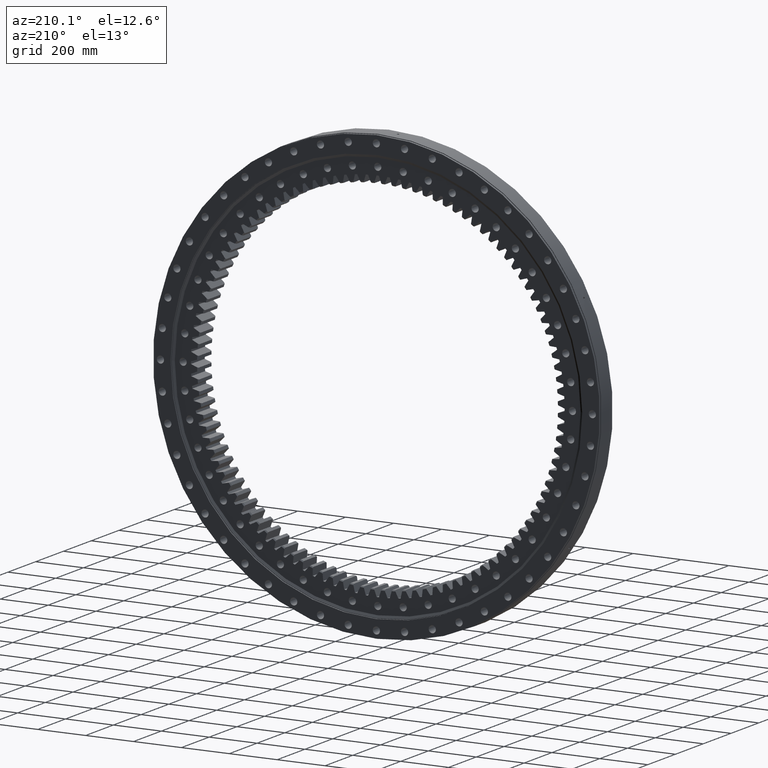
[diagram: clean part render]
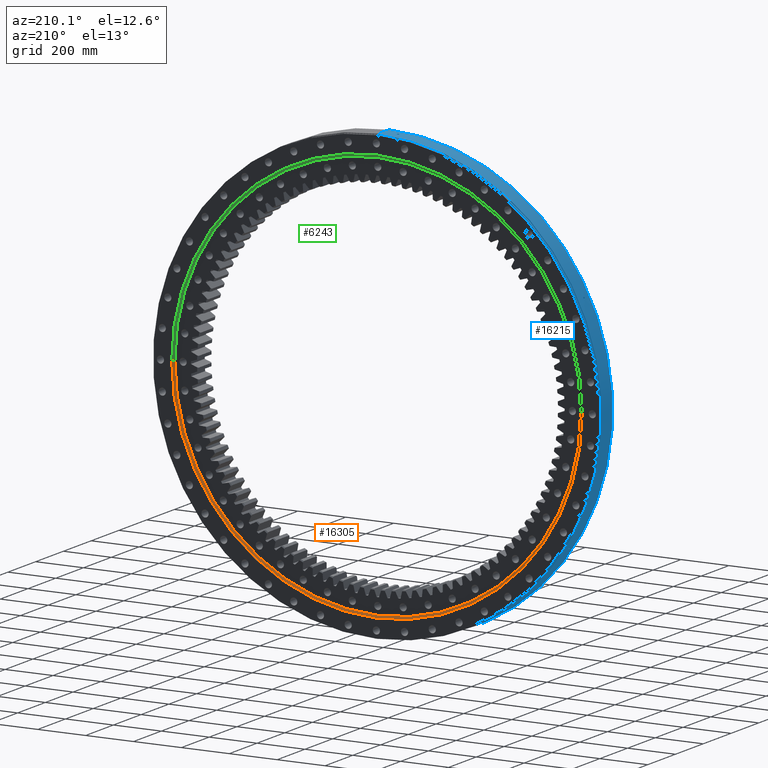
[diagram: same view with three faces highlighted in distinct colors, each labeled with its STEP entity id]
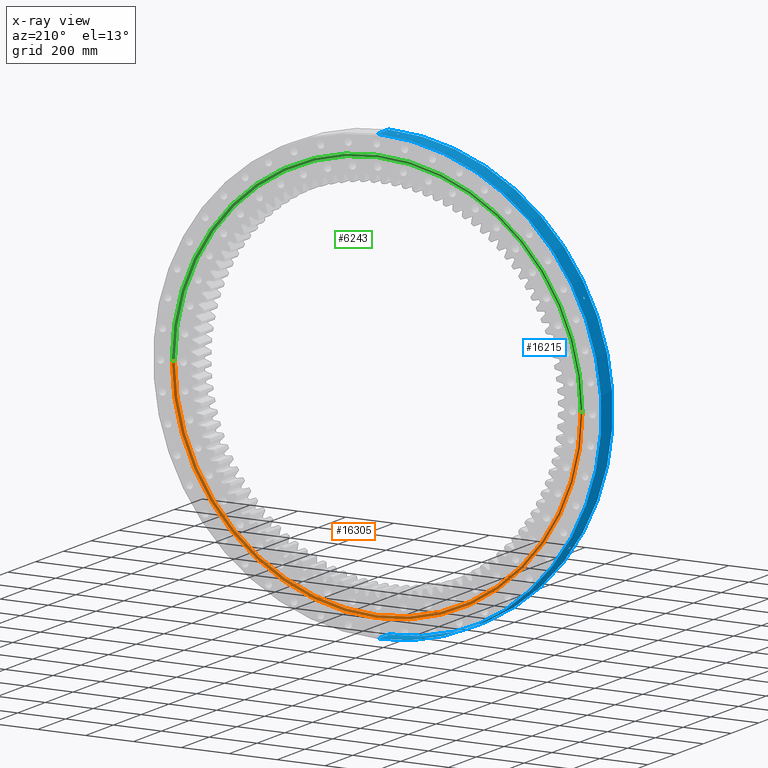
[diagram: x-ray of the same camera — body ghosted, the three highlighted faces saturated]
A machine part, auxiliary view with three faces highlighted in distinct colors.
The next image is the same camera in x-ray (body ghosted, the three faces saturated) — at least one of them is partly hidden behind the body in this view.
Their STEP definitions:

[orange] entity #16305 — the highlighted conical surface has half-angle 63.206 deg.
#672 = EDGE_LOOP ( 'NONE', ( #12882, #1497, #17077, #18035 ) ) ;
#1497 = ORIENTED_EDGE ( 'NONE', *, *, #20032, .T. ) ;
#1520 = AXIS2_PLACEMENT_3D ( 'NONE', #11622, #31775, #9370 ) ;
#2172 = DIRECTION ( 'NONE',  ( 1.836909530733565900E-016, 1.000000000000000000, -0.0000000000000000000 ) ) ;
#2451 = DIRECTION ( 'NONE',  ( -1.000000000000000000, 1.800774025532636500E-016, 0.0000000000000000000 ) ) ;
#2621 = CARTESIAN_POINT ( 'NONE',  ( -847.7224999999998500, 39.99999999999997900, 0.0000000000000000000 ) ) ;
#4622 = LINE ( 'NONE', #27598, #29627 ) ;
#5287 = CARTESIAN_POINT ( 'NONE',  ( 847.7224999999998500, 39.99999999999967300, 1.044283880185928600E-013 ) ) ;
#6338 = CONICAL_SURFACE ( 'NONE', #1520, 857.7224999999999700, 1.103156723031658600 ) ;
#7347 = VERTEX_POINT ( 'NONE', #18870 ) ;
#7887 = EDGE_CURVE ( 'NONE', #7933, #13653, #21418, .T. ) ;
#7933 = VERTEX_POINT ( 'NONE', #5287 ) ;
#8006 = DIRECTION ( 'NONE',  ( 1.836909530733565900E-016, 1.000000000000000000, -0.0000000000000000000 ) ) ;
#8359 = VECTOR ( 'NONE', #16414, 999.9999999999998900 ) ;
#9370 = DIRECTION ( 'NONE',  ( -1.000000000000000000, 1.860678247217092600E-016, 0.0000000000000000000 ) ) ;
#9931 = DIRECTION ( 'NONE',  ( 0.8926347946143691200, 0.4507805712802661600, 1.093162344032042000E-016 ) ) ;
#10504 = CARTESIAN_POINT ( 'NONE',  ( -8.773100306903011100E-017, 45.04999999999999700, 0.0000000000000000000 ) ) ;
#11622 = CARTESIAN_POINT ( 'NONE',  ( -8.773100306903011100E-017, 45.04999999999999700, 0.0000000000000000000 ) ) ;
#12882 = ORIENTED_EDGE ( 'NONE', *, *, #7887, .F. ) ;
#13653 = VERTEX_POINT ( 'NONE', #2621 ) ;
#13954 = AXIS2_PLACEMENT_3D ( 'NONE', #10504, #8006, #25461 ) ;
#14982 = LINE ( 'NONE', #18805, #8359 ) ;
#16305 = ADVANCED_FACE ( 'NONE', ( #20384 ), #6338, .F. ) ;
#16414 = DIRECTION ( 'NONE',  ( -0.8926347946143689000, 0.4507805712802665500, 0.0000000000000000000 ) ) ;
#17077 = ORIENTED_EDGE ( 'NONE', *, *, #22381, .T. ) ;
#18035 = ORIENTED_EDGE ( 'NONE', *, *, #29755, .F. ) ;
#18805 = CARTESIAN_POINT ( 'NONE',  ( -857.7224999999999700, 45.05000000000016100, 0.0000000000000000000 ) ) ;
#18870 = CARTESIAN_POINT ( 'NONE',  ( 857.7224999999999700, 45.04999999999984100, 1.050407114181665500E-013 ) ) ;
#19814 = CARTESIAN_POINT ( 'NONE',  ( -1.015370316089513500E-015, 39.99999999999982900, 0.0000000000000000000 ) ) ;
#20032 = EDGE_CURVE ( 'NONE', #7933, #7347, #4622, .T. ) ;
#20384 = FACE_OUTER_BOUND ( 'NONE', #672, .T. ) ;
#21418 = CIRCLE ( 'NONE', #29841, 847.7224999999998500 ) ;
#22381 = EDGE_CURVE ( 'NONE', #7347, #31724, #25193, .T. ) ;
#22988 = CARTESIAN_POINT ( 'NONE',  ( -857.7224999999999700, 45.05000000000016100, 0.0000000000000000000 ) ) ;
#25193 = CIRCLE ( 'NONE', #13954, 857.7224999999999700 ) ;
#25461 = DIRECTION ( 'NONE',  ( -1.000000000000000000, 1.860678247217092600E-016, 0.0000000000000000000 ) ) ;
#27598 = CARTESIAN_POINT ( 'NONE',  ( 857.7224999999999700, 45.04999999999984100, 1.050407114181665500E-013 ) ) ;
#29627 = VECTOR ( 'NONE', #9931, 1000.000000000000000 ) ;
#29755 = EDGE_CURVE ( 'NONE', #13653, #31724, #14982, .T. ) ;
#29841 = AXIS2_PLACEMENT_3D ( 'NONE', #19814, #2172, #2451 ) ;
#31724 = VERTEX_POINT ( 'NONE', #22988 ) ;
#31775 = DIRECTION ( 'NONE',  ( 1.836909530733565900E-016, 1.000000000000000000, -0.0000000000000000000 ) ) ;

[blue] entity #16215 — the highlighted cylindrical surface (partial cylindrical patch) has radius 935 mm, axis along (0, -1, -0).
#53 = EDGE_CURVE ( 'NONE', #22569, #27398, #15086, .T. ) ;
#161 = CARTESIAN_POINT ( 'NONE',  ( 5.190292640122606200E-014, 40.00000000000007800, 935.0000000000000000 ) ) ;
#709 = VECTOR ( 'NONE', #22413, 1000.000000000000000 ) ;
#881 = CARTESIAN_POINT ( 'NONE',  ( -839.8870588332384800, 3.390113906908525500, 410.8707479483011300 ) ) ;
#884 = CARTESIAN_POINT ( 'NONE',  ( -836.6786590791380100, -1.449882367915966000, 417.3653483432936500 ) ) ;
#893 = VERTEX_POINT ( 'NONE', #1319 ) ;
#988 = CARTESIAN_POINT ( 'NONE',  ( -58.90045909535886900, 3.904602557603769100, 933.1429662058669700 ) ) ;
#1058 = CARTESIAN_POINT ( 'NONE',  ( -839.0891346071400700, -4.357379671200597200, 412.4978870712253100 ) ) ;
#1097 = CARTESIAN_POINT ( 'NONE',  ( -840.5438266153053100, -0.5914352571034029400, 409.5254313578515700 ) ) ;
#1197 = B_SPLINE_CURVE_WITH_KNOTS ( 'NONE', 3,
 ( #15827, #8311, #17112, #20834, #20725, #3259, #25763, #28249, #10808, #881, #17600, #16554, #18218, #14692, #20572, #29768, #18647, #3682, #31654, #13615, #31101, #1212, #21043, #6097, #28578, #5882, #23348, #8414, #20934, #3473, #20831, #25866, #25965, #5989 ),
 .UNSPECIFIED., .F., .F.,
 ( 4, 2, 2, 2, 2, 2, 2, 2, 2, 2, 2, 2, 2, 2, 2, 2, 4 ),
 ( 9.606098294441391000E-019, 0.0008793173817945185400, 0.001758634763589036400, 0.002637952145383554400, 0.003517269527178072800, 0.004396586908972590000, 0.005275904290767108000, 0.006155221672561625100, 0.007034539054356143100, 0.007913856436150661100, 0.008793173817945178200, 0.009672491199739697100, 0.01055180858153421400, 0.01143112596332873100, 0.01231044334512324800, 0.01318976072691776700, 0.01406907810871228300 ),
 .UNSPECIFIED. ) ;
#1212 = CARTESIAN_POINT ( 'NONE',  ( -837.6928576337551200, 4.045567073167651600, 415.3260772956440400 ) ) ;
#1319 = CARTESIAN_POINT ( 'NONE',  ( -836.5760020462295200, -1.428483482257324800E-008, 417.5710631740984700 ) ) ;
#1675 = CIRCLE ( 'NONE', #27804, 935.0000000000000000 ) ;
#1791 = CARTESIAN_POINT ( 'NONE',  ( -836.6400752062489800, -1.165408872379744700, 417.4426761442746900 ) ) ;
#2263 = ORIENTED_EDGE ( 'NONE', *, *, #13979, .T. ) ;
#2414 = CARTESIAN_POINT ( 'NONE',  ( -60.56315685656362300, 4.470845085126462900, 933.0365412533557200 ) ) ;
#2833 = EDGE_CURVE ( 'NONE', #22285, #24468, #22994, .T. ) ;
#3025 = VECTOR ( 'NONE', #21871, 1000.000000000000000 ) ;
#3259 = CARTESIAN_POINT ( 'NONE',  ( -840.3568103844704600, 1.995678256666558100, 409.9090679657718400 ) ) ;
#3330 = CARTESIAN_POINT ( 'NONE',  ( -836.9874824536401500, -2.745436245652618900, 416.7457033952582600 ) ) ;
#3473 = CARTESIAN_POINT ( 'NONE',  ( -836.6784774304472900, 1.449115420867275000, 417.3657127287106600 ) ) ;
#3586 = CARTESIAN_POINT ( 'NONE',  ( -840.4550158119800500, -1.455744642426040300, 409.7076751027817100 ) ) ;
#3597 = FACE_BOUND ( 'NONE', #3846, .T. ) ;
#3682 = CARTESIAN_POINT ( 'NONE',  ( -838.4469043340341200, 4.500103715215613100, 413.8017336345386100 ) ) ;
#3846 = EDGE_LOOP ( 'NONE', ( #20776, #21255 ) ) ;
#4116 = B_SPLINE_CURVE_WITH_KNOTS ( 'NONE', 3,
 ( #23637, #26261, #4163, #1791, #884, #28215, #15828, #3330, #15785, #13161, #20690, #21749, #6289, #18731, #23316, #8279, #10881, #5959, #25931, #1058, #13480, #28475, #11022, #25972, #8529, #23467, #5994, #16051, #30998, #3586, #13516, #1097, #18548, #31700 ),
 .UNSPECIFIED., .F., .F.,
 ( 4, 2, 2, 2, 2, 2, 2, 2, 2, 2, 2, 2, 2, 2, 2, 2, 4 ),
 ( 0.01406907810871228300, 0.01494819704045171500, 0.01582731597219114500, 0.01670643490393057900, 0.01758555383567000900, 0.01846467276740944300, 0.01934379169914887300, 0.02022291063088830700, 0.02110202956262773700, 0.02198114849436717100, 0.02286026742610660100, 0.02373938635784603200, 0.02461850528958546600, 0.02549762422132489900, 0.02637674315306433000, 0.02725586208480376000, 0.02813498101654319400 ),
 .UNSPECIFIED. ) ;
#4131 = VERTEX_POINT ( 'NONE', #161 ) ;
#4163 = CARTESIAN_POINT ( 'NONE',  ( -836.5887150865633000, -0.5854521477973440000, 417.5455964292104300 ) ) ;
#4324 = CARTESIAN_POINT ( 'NONE',  ( 2.601341135008604100E-015, -22.16364734299516900, -7.744460120454373600E-016 ) ) ;
#4423 = CARTESIAN_POINT ( 'NONE',  ( -774.9150175199831700, -1.428477248101357300E-008, -523.1937648921327800 ) ) ;
#4435 = CARTESIAN_POINT ( 'NONE',  ( -774.9150175199831700, 0.2973259170856331100, -523.1937648921330000 ) ) ;
#4476 = EDGE_LOOP ( 'NONE', ( #12852, #20571, #6640, #20876 ) ) ;
#4577 = CARTESIAN_POINT ( 'NONE',  ( -774.9313457239331900, 0.5896826915132857800, -523.1695831010428000 ) ) ;
#4619 = CARTESIAN_POINT ( 'NONE',  ( -774.9953100212703700, 1.164864380539166700, -523.0748251566503800 ) ) ;
#4645 = CARTESIAN_POINT ( 'NONE',  ( -775.0437221192661400, 1.450668035379774100, -523.0030990000372000 ) ) ;
#4688 = CARTESIAN_POINT ( 'NONE',  ( -775.1700712921946200, 1.995678256666611800, -522.8158120533299800 ) ) ;
#4725 = CARTESIAN_POINT ( 'NONE',  ( -775.4299246063383200, 2.743366967131641000, -522.4303386066952700 ) ) ;
#4752 = CARTESIAN_POINT ( 'NONE',  ( -775.2473734148784400, 2.254167965635247600, -522.7011925421918500 ) ) ;
#4788 = CARTESIAN_POINT ( 'NONE',  ( -775.5361419730034000, 2.974980489996665900, -522.2726640451068100 ) ) ;
#4820 = CARTESIAN_POINT ( 'NONE',  ( -775.7680348117597800, 3.390113906908633500, -521.9281552852307900 ) ) ;
#4827 = CARTESIAN_POINT ( 'NONE',  ( -775.8945073355633900, 3.576390742001641000, -521.7401403022057600 ) ) ;
#4850 = CARTESIAN_POINT ( 'NONE',  ( -776.1689413729743600, 3.905345692483482600, -521.3317897117129900 ) ) ;
#4851 = AXIS2_PLACEMENT_3D ( 'NONE', #4324, #14035, #10018 ) ;
#4892 = CARTESIAN_POINT ( 'NONE',  ( -776.3149847092790900, 4.045122954196368200, -521.1143040072039400 ) ) ;
#4919 = CARTESIAN_POINT ( 'NONE',  ( -62.60038682104426800, 4.269502545717660500, 932.9020660792519900 ) ) ;
#4928 = CARTESIAN_POINT ( 'NONE',  ( -776.6166950570966500, 4.269502545717617900, -520.6645583133865800 ) ) ;
#4999 = CARTESIAN_POINT ( 'NONE',  ( -776.7745854934034900, 4.355843313726299300, -520.4289843042551000 ) ) ;
#5042 = CARTESIAN_POINT ( 'NONE',  ( -777.0977908991950500, 4.471354350002257200, -519.9462546763826400 ) ) ;
#5123 = CARTESIAN_POINT ( 'NONE',  ( -777.5862656245680000, 4.500103715215642500, -519.2154520604268600 ) ) ;
#5158 = CARTESIAN_POINT ( 'NONE',  ( -777.2601374475087800, 4.499895691090911100, -519.7035355674946700 ) ) ;
#5196 = CARTESIAN_POINT ( 'NONE',  ( -777.7517689562894200, 4.470845085126433600, -518.9675029978473000 ) ) ;
#5225 = CARTESIAN_POINT ( 'NONE',  ( -778.0719785511164400, 4.355942455188898800, -518.4872992427187900 ) ) ;
#5328 = CARTESIAN_POINT ( 'NONE',  ( -778.2275001971288500, 4.270949597818860100, -518.2538298453007400 ) ) ;
#5360 = CARTESIAN_POINT ( 'NONE',  ( -778.5293626090435700, 4.045567073167708500, -517.8002566317931000 ) ) ;
#5405 = CARTESIAN_POINT ( 'NONE',  ( -778.6752845493630300, 3.904602557603730400, -517.5807769740843000 ) ) ;
#5433 = CARTESIAN_POINT ( 'NONE',  ( -778.9451471073288100, 3.578756322932919300, -517.1745520219165000 ) ) ;
#5508 = CARTESIAN_POINT ( 'NONE',  ( -779.0708405521487500, 3.392751208765664800, -516.9851734251839200 ) ) ;
#5531 = CARTESIAN_POINT ( 'NONE',  ( -779.3030960576820700, 2.972768551380315500, -516.6350052164580100 ) ) ;
#5612 = CARTESIAN_POINT ( 'NONE',  ( -779.4061673380904300, 2.744954370038871900, -516.4794796218783400 ) ) ;
#5634 = CARTESIAN_POINT ( 'NONE',  ( -779.5861503363922800, 2.257522880529886600, -516.2077689834025000 ) ) ;
#5675 = CARTESIAN_POINT ( 'NONE',  ( -779.6638857672577400, 1.994552762401068200, -516.0903389787263200 ) ) ;
#5714 = CARTESIAN_POINT ( 'NONE',  ( -779.8354726871381200, 1.168558750569269600, -515.8310177236860500 ) ) ;
#5740 = CARTESIAN_POINT ( 'NONE',  ( -779.7885486068843200, 1.449115420867305600, -515.9019598900991900 ) ) ;
#5782 = CARTESIAN_POINT ( 'NONE',  ( -779.8989186827600400, 0.5919602189344246300, -515.7350869821510700 ) ) ;
#5831 = CARTESIAN_POINT ( 'NONE',  ( -779.9151496171596100, 0.2936958648407266800, -515.7105383814097200 ) ) ;
#5856 = CARTESIAN_POINT ( 'NONE',  ( -779.9151496171596100, -1.428479556141703000E-008, -515.7105383814099500 ) ) ;
#5882 = CARTESIAN_POINT ( 'NONE',  ( -837.0705870305988600, 2.972768551380241300, 416.5787758255901800 ) ) ;
#5959 = CARTESIAN_POINT ( 'NONE',  ( -838.7055620320421700, -4.500248275093519500, 413.2772292819373100 ) ) ;
#5989 = CARTESIAN_POINT ( 'NONE',  ( -836.5760020462295200, -1.428483482257324800E-008, 417.5710631740984700 ) ) ;
#5994 = CARTESIAN_POINT ( 'NONE',  ( -840.1505977614276600, -2.750356992142264800, 410.3315733882947700 ) ) ;
#6097 = CARTESIAN_POINT ( 'NONE',  ( -837.3588737954796700, 3.578756322932875800, 415.9990095385972500 ) ) ;
#6213 = CARTESIAN_POINT ( 'NONE',  ( -57.76749097291330800, 2.972768551380359000, 933.2137810420466600 ) ) ;
#6289 = CARTESIAN_POINT ( 'NONE',  ( -837.6904525244199200, -4.042877907133463300, 415.3309279980291000 ) ) ;
#6640 = ORIENTED_EDGE ( 'NONE', *, *, #53, .F. ) ;
#6655 = B_SPLINE_CURVE_WITH_KNOTS ( 'NONE', 3,
 ( #11935, #11755, #11897, #11857, #12076, #12024, #11970, #11960, #12220, #12190, #12115, #12084, #12332, #12300, #12292, #12260, #12487, #12443, #12414, #12404, #12623, #12587, #12551, #12524, #12800, #12762, #12718, #12650, #12939, #12873, #12843, #12832, #12946, #13070 ),
 .UNSPECIFIED., .F., .F.,
 ( 4, 2, 2, 2, 2, 2, 2, 2, 2, 2, 2, 2, 2, 2, 2, 2, 4 ),
 ( 0.01406907810871240600, 0.01494819704045185000, 0.01582731597219129400, 0.01670643490393073500, 0.01758555383567017900, 0.01846467276740962300, 0.01934379169914906800, 0.02022291063088851200, 0.02110202956262795200, 0.02198114849436739700, 0.02286026742610684100, 0.02373938635784628500, 0.02461850528958572900, 0.02549762422132517000, 0.02637674315306461800, 0.02725586208480405800, 0.02813498101654349900 ),
 .UNSPECIFIED. ) ;
#7009 = EDGE_LOOP ( 'NONE', ( #10035, #2263 ) ) ;
#7247 = CARTESIAN_POINT ( 'NONE',  ( -57.11540131966614800, 1.994552762401127200, 933.2539009770971500 ) ) ;
#7432 = EDGE_CURVE ( 'NONE', #4131, #22569, #9703, .T. ) ;
#7901 = CARTESIAN_POINT ( 'NONE',  ( -56.66085242906655100, 0.2936958648407602700, 933.2816015555065400 ) ) ;
#8279 = CARTESIAN_POINT ( 'NONE',  ( -838.3138073838457600, -4.470446237297413600, 414.0713019059583600 ) ) ;
#8311 = CARTESIAN_POINT ( 'NONE',  ( -840.5566002582005500, 0.2973259170855894200, 409.4992085003044600 ) ) ;
#8414 = CARTESIAN_POINT ( 'NONE',  ( -836.8421167387107300, 2.257522880529850600, 417.0375261381306600 ) ) ;
#8529 = CARTESIAN_POINT ( 'NONE',  ( -839.8862184863895700, -3.391803679046448300, 410.8724658605009400 ) ) ;
#9619 = CARTESIAN_POINT ( 'NONE',  ( -65.64158273821399800, -1.428476236082082400E-008, 932.6929733924355300 ) ) ;
#9703 = LINE ( 'NONE', #21672, #3025 ) ;
#9766 = CARTESIAN_POINT ( 'NONE',  ( -63.40210300425901100, 3.905345692483500800, 932.8479157133271000 ) ) ;
#9819 = B_SPLINE_CURVE_WITH_KNOTS ( 'NONE', 3,
 ( #27745, #22501, #29928, #12454, #27417, #27312, #9869, #24809, #17285, #12227, #27208, #9766, #22396, #4919, #19890, #14868, #29830, #12342, #2414, #17384, #32340, #18441, #988, #15933, #23670, #6213, #21163, #24706, #7247, #22190, #10386, #25345, #7901, #25452 ),
 .UNSPECIFIED., .F., .F.,
 ( 4, 2, 2, 2, 2, 2, 2, 2, 2, 2, 2, 2, 2, 2, 2, 2, 4 ),
 ( 1.845531891285181700E-018, 0.0008793173817945372900, 0.001758634763589072400, 0.002637952145383607300, 0.003517269527178141800, 0.004396586908972676700, 0.005275904290767212900, 0.006155221672561709200, 0.007034539054356205500, 0.007913856436150702700, 0.008793173817945197300, 0.009672491199739693600, 0.01055180858153419200, 0.01143112596332868800, 0.01231044334512318300, 0.01318976072691768100, 0.01406907810871217500 ),
 .UNSPECIFIED. ) ;
#9869 = CARTESIAN_POINT ( 'NONE',  ( -65.04882462251549700, 2.254167965635245400, 932.7345158655421100 ) ) ;
#10018 = DIRECTION ( 'NONE',  ( 5.551115123125782700E-017, -3.339574606158558900E-017, 1.000000000000000000 ) ) ;
#10035 = ORIENTED_EDGE ( 'NONE', *, *, #24246, .T. ) ;
#10270 = FACE_BOUND ( 'NONE', #7009, .T. ) ;
#10386 = CARTESIAN_POINT ( 'NONE',  ( -56.80502906511953400, 1.168558750569284500, 933.2728389811505800 ) ) ;
#10501 = AXIS2_PLACEMENT_3D ( 'NONE', #31081, #30874, #30657 ) ;
#10733 = VERTEX_POINT ( 'NONE', #26467 ) ;
#10808 = CARTESIAN_POINT ( 'NONE',  ( -840.0694657517390200, 2.974980489996545100, 410.4976684790445300 ) ) ;
#10860 = CARTESIAN_POINT ( 'NONE',  ( 5.659771529540282600E-014, -39.99999999999985100, 935.0000000000000000 ) ) ;
#10881 = CARTESIAN_POINT ( 'NONE',  ( -838.4431124020626400, -4.499748562082101200, 413.8094190469579400 ) ) ;
#11022 = CARTESIAN_POINT ( 'NONE',  ( -839.5692481509585100, -3.907537655886201400, 411.5197897098918200 ) ) ;
#11394 = CARTESIAN_POINT ( 'NONE',  ( -65.04580552007109900, -2.259570904133299900, 932.7347266090409900 ) ) ;
#11415 = CARTESIAN_POINT ( 'NONE',  ( -64.71773235160958400, -2.750356992142195100, 932.7575473602255400 ) ) ;
#11418 = B_SPLINE_CURVE_WITH_KNOTS ( 'NONE', 3,
 ( #4423, #4435, #4577, #4619, #4645, #4688, #4752, #4725, #4788, #4820, #4827, #4850, #4892, #4928, #4999, #5042, #5158, #5123, #5196, #5225, #5328, #5360, #5405, #5433, #5508, #5531, #5612, #5634, #5675, #5740, #5714, #5782, #5831, #5856 ),
 .UNSPECIFIED., .F., .F.,
 ( 4, 2, 2, 2, 2, 2, 2, 2, 2, 2, 2, 2, 2, 2, 2, 2, 4 ),
 ( 3.134958246475574900E-017, 0.0008793173817945551800, 0.001758634763589079100, 0.002637952145383601700, 0.003517269527178124900, 0.004396586908972647200, 0.005275904290767171300, 0.006155221672561693600, 0.007034539054356216800, 0.007913856436150740900, 0.008793173817945263200, 0.009672491199739789000, 0.01055180858153431300, 0.01143112596332883500, 0.01231044334512335900, 0.01318976072691788400, 0.01406907810871240600 ),
 .UNSPECIFIED. ) ;
#11426 = CARTESIAN_POINT ( 'NONE',  ( -64.53185054537145500, -2.976676937804931400, 932.7704344965301300 ) ) ;
#11718 = CARTESIAN_POINT ( 'NONE',  ( -65.49632652839102300, -1.173647371215869000, 932.7031867648040600 ) ) ;
#11755 = CARTESIAN_POINT ( 'NONE',  ( -779.9151496171596100, -0.2936296102177011800, -515.7105383814098300 ) ) ;
#11816 = CARTESIAN_POINT ( 'NONE',  ( -65.41025314151767100, -1.455744642425954400, 932.7092319826175500 ) ) ;
#11825 = CARTESIAN_POINT ( 'NONE',  ( -65.18593207746843600, -1.997034113176124200, 932.7249363562835900 ) ) ;
#11850 = CARTESIAN_POINT ( 'NONE',  ( -64.11711609244432000, -3.391803679046361300, 932.7990344279114700 ) ) ;
#11857 = CARTESIAN_POINT ( 'NONE',  ( -779.8359997678259100, -1.165408872379706500, -515.8302208805994300 ) ) ;
#11858 = CARTESIAN_POINT ( 'NONE',  ( -63.88583015509618700, -3.581694362248828400, 932.8149122248383900 ) ) ;
#11892 = CARTESIAN_POINT ( 'NONE',  ( -63.39803202668078800, -3.907537655886125900, 932.8481919898775900 ) ) ;
#11897 = CARTESIAN_POINT ( 'NONE',  ( -779.8994512893016200, -0.5854521477973057000, -515.7342815697420500 ) ) ;
#11935 = CARTESIAN_POINT ( 'NONE',  ( -779.9151496171596100, -1.428479556141703000E-008, -515.7105383814099500 ) ) ;
#11960 = CARTESIAN_POINT ( 'NONE',  ( -779.4061072851270600, -2.745436245652562900, -516.4795707568072200 ) ) ;
#11970 = CARTESIAN_POINT ( 'NONE',  ( -779.5878681819764300, -2.252548490497078100, -516.2051751638803100 ) ) ;
#12024 = CARTESIAN_POINT ( 'NONE',  ( -779.6646456165403800, -1.991443686570747700, -516.0891908689984600 ) ) ;
#12076 = CARTESIAN_POINT ( 'NONE',  ( -779.7883238642012900, -1.449882367915939800, -515.9022993951880400 ) ) ;
#12084 = CARTESIAN_POINT ( 'NONE',  ( -778.6753958866534000, -3.904567298179730800, -517.5806098719339200 ) ) ;
#12115 = CARTESIAN_POINT ( 'NONE',  ( -778.9461947168600800, -3.577391841006972100, -517.1729745556727900 ) ) ;
#12190 = CARTESIAN_POINT ( 'NONE',  ( -779.0740635537606500, -3.387315525628027800, -516.9803153570803700 ) ) ;
#12220 = CARTESIAN_POINT ( 'NONE',  ( -779.3032158658413700, -2.972153797211620300, -516.6348233617560500 ) ) ;
#12227 = CARTESIAN_POINT ( 'NONE',  ( -64.11902402147507000, 3.390113906908623200, 932.7989032335302700 ) ) ;
#12254 = CARTESIAN_POINT ( 'NONE',  ( -65.64158273821399800, -1.428476236082082400E-008, 932.6929733924355300 ) ) ;
#12259 = CARTESIAN_POINT ( 'NONE',  ( -65.64158273821398400, -0.2972588432088074700, 932.6929733924356500 ) ) ;
#12260 = CARTESIAN_POINT ( 'NONE',  ( -777.7531701205772400, -4.470446237297370100, -518.9654025846874700 ) ) ;
#12292 = CARTESIAN_POINT ( 'NONE',  ( -778.0722813329516600, -4.355729367163173800, -518.4868443208860100 ) ) ;
#12300 = CARTESIAN_POINT ( 'NONE',  ( -778.2309289277978900, -4.268830658090625900, -518.2486809075820700 ) ) ;
#12328 = CARTESIAN_POINT ( 'NONE',  ( -65.61248625597062300, -0.5914352571033233400, 932.6950225219624100 ) ) ;
#12332 = CARTESIAN_POINT ( 'NONE',  ( -778.5323608858677700, -4.042877907133422400, -517.7957483948173400 ) ) ;
#12342 = CARTESIAN_POINT ( 'NONE',  ( -60.86063870946271900, 4.500103715215681500, 933.0171856949637000 ) ) ;
#12404 = CARTESIAN_POINT ( 'NONE',  ( -776.7782165146544500, -4.357379671200551000, -520.4235630736727700 ) ) ;
#12414 = CARTESIAN_POINT ( 'NONE',  ( -777.0981117923671500, -4.471227465843635500, -519.9457734251927800 ) ) ;
#12443 = CARTESIAN_POINT ( 'NONE',  ( -777.2613603798239400, -4.500248275093481400, -519.7017083740869300 ) ) ;
#12454 = CARTESIAN_POINT ( 'NONE',  ( -65.49843165512312700, 1.164864380539175400, 932.7030388705418300 ) ) ;
#12487 = CARTESIAN_POINT ( 'NONE',  ( -777.5910254209757100, -4.499748562082060300, -519.2083254448007200 ) ) ;
#12524 = CARTESIAN_POINT ( 'NONE',  ( -775.8984959381110700, -3.581694362248805800, -521.7342079685942100 ) ) ;
#12551 = CARTESIAN_POINT ( 'NONE',  ( -776.1712161242742200, -3.907537655886113500, -521.3284022799873600 ) ) ;
#12587 = CARTESIAN_POINT ( 'NONE',  ( -776.3153696786160900, -4.045624711788591700, -521.1137316227443500 ) ) ;
#12623 = CARTESIAN_POINT ( 'NONE',  ( -776.6194557078326900, -4.271337977532496700, -520.6604416518483700 ) ) ;
#12650 = CARTESIAN_POINT ( 'NONE',  ( -775.2490654753248700, -2.259570904133294500, -522.6986832945278800 ) ) ;
#12718 = CARTESIAN_POINT ( 'NONE',  ( -775.4328654098145500, -2.750356992142193800, -522.4259739719321900 ) ) ;
#12762 = CARTESIAN_POINT ( 'NONE',  ( -775.5369669003556500, -2.976676937804926900, -522.2714391737811200 ) ) ;
#12800 = CARTESIAN_POINT ( 'NONE',  ( -775.7691023939419200, -3.391803679046361300, -521.9265685674121200 ) ) ;
#12832 = CARTESIAN_POINT ( 'NONE',  ( -774.9313403593314400, -0.5914352571033033600, -523.1695911641129400 ) ) ;
#12843 = CARTESIAN_POINT ( 'NONE',  ( -774.9964906648240200, -1.173647371215852600, -523.0730760105528800 ) ) ;
#12852 = ORIENTED_EDGE ( 'NONE', *, *, #23037, .F. ) ;
#12873 = CARTESIAN_POINT ( 'NONE',  ( -775.0447626704591400, -1.455744642425924200, -523.0015568798377200 ) ) ;
#12939 = CARTESIAN_POINT ( 'NONE',  ( -775.1705235890290200, -1.997034113176098700, -522.8151413266005000 ) ) ;
#12946 = CARTESIAN_POINT ( 'NONE',  ( -774.9150175199833900, -0.2972588432088485400, -523.1937648921330000 ) ) ;
#13070 = CARTESIAN_POINT ( 'NONE',  ( -774.9150175199831700, -1.428477248101357300E-008, -523.1937648921327800 ) ) ;
#13161 = CARTESIAN_POINT ( 'NONE',  ( -837.2551181326013000, -3.387315525628025600, 416.2077727885906600 ) ) ;
#13331 = EDGE_CURVE ( 'NONE', #893, #15504, #4116, .T. ) ;
#13480 = CARTESIAN_POINT ( 'NONE',  ( -839.2148970700416200, -4.271337977532514400, 412.2419568903042700 ) ) ;
#13516 = CARTESIAN_POINT ( 'NONE',  ( -840.4928171932184600, -1.173647371215949600, 409.6301107542527100 ) ) ;
#13615 = CARTESIAN_POINT ( 'NONE',  ( -838.0591619593360500, 4.355942455188853500, 414.5864497767303800 ) ) ;
#13979 = EDGE_CURVE ( 'NONE', #10733, #21094, #6655, .T. ) ;
#14035 = DIRECTION ( 'NONE',  ( 1.173697223544192200E-016, -1.000000000000000000, -3.494217355385783800E-017 ) ) ;
#14692 = CARTESIAN_POINT ( 'NONE',  ( -839.2170818781440900, 4.269502545717584100, 412.2375077658670600 ) ) ;
#14714 = CARTESIAN_POINT ( 'NONE',  ( -56.80407543842017000, -1.165408872379667800, 933.2728970248721200 ) ) ;
#14738 = CARTESIAN_POINT ( 'NONE',  ( -56.66085242906656600, -1.428476130419581400E-008, 933.2816015555067700 ) ) ;
#14759 = LINE ( 'NONE', #17401, #709 ) ;
#14868 = CARTESIAN_POINT ( 'NONE',  ( -61.73776970271902100, 4.471354350002290100, 932.9595554816626200 ) ) ;
#14928 = CARTESIAN_POINT ( 'NONE',  ( -56.68926379725819900, -0.5854521477972682900, 933.2798779989509500 ) ) ;
#15086 = CIRCLE ( 'NONE', #10501, 935.0000000000000000 ) ;
#15140 = CARTESIAN_POINT ( 'NONE',  ( -58.18105457883736900, -3.387315525627960300, 933.1880881456694400 ) ) ;
#15146 = CARTESIAN_POINT ( 'NONE',  ( -57.76727357804176700, -2.972153797211556800, 933.2137938716053900 ) ) ;
#15172 = CARTESIAN_POINT ( 'NONE',  ( -57.58137516850946700, -2.745436245652544300, 933.2252741520635500 ) ) ;
#15336 = CYLINDRICAL_SURFACE ( 'NONE', #4851, 935.0000000000000000 ) ;
#15430 = CARTESIAN_POINT ( 'NONE',  ( -56.66085242906658000, -0.2936296102176648200, 933.2816015555068800 ) ) ;
#15470 = CARTESIAN_POINT ( 'NONE',  ( -60.56063726326462400, -4.470446237297335500, 933.0367044906443000 ) ) ;
#15492 = CARTESIAN_POINT ( 'NONE',  ( -59.98663804343430400, -4.355729367163125900, 933.0737837752919900 ) ) ;
#15504 = VERTEX_POINT ( 'NONE', #31818 ) ;
#15580 = CARTESIAN_POINT ( 'NONE',  ( -59.70105867983814800, -4.268830658090611700, 933.0920949160263300 ) ) ;
#15785 = CARTESIAN_POINT ( 'NONE',  ( -837.0704894438870300, -2.972153797211621200, 416.5789705098509300 ) ) ;
#15827 = CARTESIAN_POINT ( 'NONE',  ( -840.5566002582005500, -1.428483501489346500E-008, 409.4992085003042900 ) ) ;
#15828 = CARTESIAN_POINT ( 'NONE',  ( -836.8407293479037900, -2.252548490497136200, 417.0403107458078600 ) ) ;
#15890 = CARTESIAN_POINT ( 'NONE',  ( -63.14004500689042500, -4.045624711788528700, 932.8656973013617100 ) ) ;
#15919 = CARTESIAN_POINT ( 'NONE',  ( -62.59544136220568300, -4.271337977532443400, 932.9023985421511000 ) ) ;
#15933 = CARTESIAN_POINT ( 'NONE',  ( -58.41372668814750600, 3.578756322932951300, 933.1735615605117600 ) ) ;
#16006 = CARTESIAN_POINT ( 'NONE',  ( -62.31091809248210500, -4.357379671200524400, 932.9214501448963100 ) ) ;
#16051 = CARTESIAN_POINT ( 'NONE',  ( -840.2948709953993800, -2.259570904133366500, 410.0360433145149300 ) ) ;
#16215 = ADVANCED_FACE ( 'NONE', ( #3597, #22750, #10270, #30192 ), #15336, .T. ) ;
#16438 = CARTESIAN_POINT ( 'NONE',  ( -61.73719248037682700, -4.471227465843601800, 932.9595927577063300 ) ) ;
#16462 = CARTESIAN_POINT ( 'NONE',  ( -61.44420165221507100, -4.500248275093442300, 932.9789376560224800 ) ) ;
#16471 = CARTESIAN_POINT ( 'NONE',  ( -60.85208698108346000, -4.499748562082031900, 933.0177444917569600 ) ) ;
#16554 = CARTESIAN_POINT ( 'NONE',  ( -839.5710443772367200, 3.905345692483432400, 411.5161260016156500 ) ) ;
#16719 = CARTESIAN_POINT ( 'NONE',  ( -59.15809163854898100, -4.042877907133410900, 933.1266763928447300 ) ) ;
#16761 = CARTESIAN_POINT ( 'NONE',  ( -58.90025871200654000, -3.904567298179688200, 933.1429790757139200 ) ) ;
#16768 = CARTESIAN_POINT ( 'NONE',  ( -58.41183675754142300, -3.577391841006931200, 933.1736800838577900 ) ) ;
#17056 = CARTESIAN_POINT ( 'NONE',  ( -57.25286116592362600, -2.252548490497063400, 933.2454859096865200 ) ) ;
#17097 = CARTESIAN_POINT ( 'NONE',  ( -57.11402710283406500, -1.991443686570721200, 933.2539849710151400 ) ) ;
#17102 = CARTESIAN_POINT ( 'NONE',  ( -56.89033521493301000, -1.449882367915914700, 933.2676477384802600 ) ) ;
#17112 = CARTESIAN_POINT ( 'NONE',  ( -840.5438223147828000, 0.5896826915132379300, 409.5254400352684500 ) ) ;
#17285 = CARTESIAN_POINT ( 'NONE',  ( -64.53332377873208300, 2.974980489996648500, 932.7703325241498100 ) ) ;
#17384 = CARTESIAN_POINT ( 'NONE',  ( -59.98718340821604800, 4.355942455188928100, 933.0737490194472900 ) ) ;
#17401 = CARTESIAN_POINT ( 'NONE',  ( -1.638060609864950100E-013, -22.16364734299513700, -935.0000000000000000 ) ) ;
#17600 = CARTESIAN_POINT ( 'NONE',  ( -839.7874693435478500, 3.576390742001586400, 411.0742838583084300 ) ) ;
#18218 = CARTESIAN_POINT ( 'NONE',  ( -839.4557179003242000, 4.045122954196342500, 411.7513460931637000 ) ) ;
#18441 = CARTESIAN_POINT ( 'NONE',  ( -59.16349502470823300, 4.045567073167723600, 933.1263339274353300 ) ) ;
#18548 = CARTESIAN_POINT ( 'NONE',  ( -840.5566002582011200, -0.2972588432088829600, 409.4992085003045200 ) ) ;
#18592 = CARTESIAN_POINT ( 'NONE',  ( -56.66085242906656600, -1.428476130419581400E-008, 933.2816015555067700 ) ) ;
#18610 = ORIENTED_EDGE ( 'NONE', *, *, #13331, .T. ) ;
#18647 = CARTESIAN_POINT ( 'NONE',  ( -838.7065329617936400, 4.499895691090863200, 413.2752565947814700 ) ) ;
#18731 = CARTESIAN_POINT ( 'NONE',  ( -837.9319876076393700, -4.268830658090668500, 414.8434140084457900 ) ) ;
#19054 = CARTESIAN_POINT ( 'NONE',  ( -774.9150175199831700, -1.428477248101357300E-008, -523.1937648921327800 ) ) ;
#19890 = CARTESIAN_POINT ( 'NONE',  ( -62.31742852651159100, 4.355843313726336600, 932.9210162035428800 ) ) ;
#20143 = EDGE_CURVE ( 'NONE', #24468, #22285, #9819, .T. ) ;
#20571 = ORIENTED_EDGE ( 'NONE', *, *, #27077, .T. ) ;
#20572 = CARTESIAN_POINT ( 'NONE',  ( -839.0920140199183400, 4.355843313726264700, 412.4920318992892000 ) ) ;
#20690 = CARTESIAN_POINT ( 'NONE',  ( -837.3580314744050400, -3.577391841006991600, 416.0007055281863600 ) ) ;
#20725 = CARTESIAN_POINT ( 'NONE',  ( -840.4558310516519000, 1.450668035379719000, 409.7060028989151300 ) ) ;
#20776 = ORIENTED_EDGE ( 'NONE', *, *, #20143, .T. ) ;
#20831 = CARTESIAN_POINT ( 'NONE',  ( -836.6405017522612300, 1.168558750569211000, 417.4418212574663000 ) ) ;
#20834 = CARTESIAN_POINT ( 'NONE',  ( -840.4937416763970100, 1.164864380539115500, 409.6282137138936200 ) ) ;
#20876 = ORIENTED_EDGE ( 'NONE', *, *, #7432, .F. ) ;
#20934 = CARTESIAN_POINT ( 'NONE',  ( -836.7792870869274100, 1.994552762401041700, 417.1635619983726400 ) ) ;
#20963 = EDGE_CURVE ( 'NONE', #15504, #893, #1197, .T. ) ;
#21043 = CARTESIAN_POINT ( 'NONE',  ( -837.5757436447253200, 3.904602557603693100, 415.5621892317846600 ) ) ;
#21094 = VERTEX_POINT ( 'NONE', #19054 ) ;
#21163 = CARTESIAN_POINT ( 'NONE',  ( -57.58126621686434300, 2.744954370038919400, 933.2252805919907800 ) ) ;
#21255 = ORIENTED_EDGE ( 'NONE', *, *, #2833, .T. ) ;
#21374 = EDGE_LOOP ( 'NONE', ( #27742, #18610 ) ) ;
#21490 = CARTESIAN_POINT ( 'NONE',  ( -1.664074021215036300E-013, 40.00000000000024200, -935.0000000000000000 ) ) ;
#21672 = CARTESIAN_POINT ( 'NONE',  ( 5.450426753623467200E-014, -22.16364734299520100, 935.0000000000000000 ) ) ;
#21684 = CARTESIAN_POINT ( 'NONE',  ( -4.694788894176787500E-015, 40.00000000000016300, 1.397686942154319000E-015 ) ) ;
#21717 = DIRECTION ( 'NONE',  ( -1.173697223544192200E-016, 1.000000000000000000, 8.822830751849692900E-017 ) ) ;
#21749 = CARTESIAN_POINT ( 'NONE',  ( -837.5756545986633900, -3.904567298179753500, 415.5623692037817100 ) ) ;
#21762 = DIRECTION ( 'NONE',  ( -5.551115123125783900E-017, 8.905532283089490800E-017, -1.000000000000000000 ) ) ;
#21871 = DIRECTION ( 'NONE',  ( 1.173697223544192200E-016, -1.000000000000000000, -3.494217355385783800E-017 ) ) ;
#22190 = CARTESIAN_POINT ( 'NONE',  ( -56.88992882355988500, 1.449115420867360400, 933.2676726188079800 ) ) ;
#22285 = VERTEX_POINT ( 'NONE', #18592 ) ;
#22396 = CARTESIAN_POINT ( 'NONE',  ( -63.14073319104172600, 4.045122954196412700, 932.8656501003662200 ) ) ;
#22413 = DIRECTION ( 'NONE',  ( 1.173697223544192200E-016, -1.000000000000000000, -3.494217355385783800E-017 ) ) ;
#22501 = CARTESIAN_POINT ( 'NONE',  ( -65.64158273821401200, 0.2973259170856600300, 932.6929733924357600 ) ) ;
#22569 = VERTEX_POINT ( 'NONE', #10860 ) ;
#22750 = FACE_BOUND ( 'NONE', #21374, .T. ) ;
#22994 = B_SPLINE_CURVE_WITH_KNOTS ( 'NONE', 3,
 ( #14738, #15430, #14928, #14714, #17102, #17097, #17056, #15172, #15146, #15140, #16768, #16761, #16719, #15580, #15492, #15470, #16471, #16462, #16438, #16006, #15919, #15890, #11892, #11858, #11850, #11426, #11415, #11394, #11825, #11816, #11718, #12328, #12259, #12254 ),
 .UNSPECIFIED., .F., .F.,
 ( 4, 2, 2, 2, 2, 2, 2, 2, 2, 2, 2, 2, 2, 2, 2, 2, 4 ),
 ( 0.01406907810871217500, 0.01494819704045160000, 0.01582731597219102700, 0.01670643490393045000, 0.01758555383566987700, 0.01846467276740930400, 0.01934379169914873100, 0.02022291063088815400, 0.02110202956262758100, 0.02198114849436700500, 0.02286026742610643100, 0.02373938635784585800, 0.02461850528958528500, 0.02549762422132471200, 0.02637674315306413500, 0.02725586208480356200, 0.02813498101654298600 ),
 .UNSPECIFIED. ) ;
#23037 = EDGE_CURVE ( 'NONE', #31348, #4131, #1675, .T. ) ;
#23316 = CARTESIAN_POINT ( 'NONE',  ( -838.0589193763894400, -4.355729367163211100, 414.5869394544078500 ) ) ;
#23348 = CARTESIAN_POINT ( 'NONE',  ( -836.9874335549581000, 2.744954370038839000, 416.7458009701144300 ) ) ;
#23467 = CARTESIAN_POINT ( 'NONE',  ( -840.0688174457305900, -2.976676937805018400, 410.4989953227507200 ) ) ;
#23637 = CARTESIAN_POINT ( 'NONE',  ( -836.5760020462295200, -1.428483482257324800E-008, 417.5710631740984700 ) ) ;
#23670 = CARTESIAN_POINT ( 'NONE',  ( -58.18687329003413600, 3.392751208765708800, 933.1877259784488400 ) ) ;
#24246 = EDGE_CURVE ( 'NONE', #21094, #10733, #11418, .T. ) ;
#24468 = VERTEX_POINT ( 'NONE', #9619 ) ;
#24706 = CARTESIAN_POINT ( 'NONE',  ( -57.25596640231508200, 2.257522880529932800, 933.2452951215311700 ) ) ;
#24809 = CARTESIAN_POINT ( 'NONE',  ( -64.72298263793077000, 2.743366967131636100, 932.7571828670891100 ) ) ;
#25345 = CARTESIAN_POINT ( 'NONE',  ( -56.69022760813567900, 0.5919602189344394000, 933.2798194543601100 ) ) ;
#25452 = CARTESIAN_POINT ( 'NONE',  ( -56.66085242906656600, -1.428476130419581400E-008, 933.2816015555067700 ) ) ;
#25763 = CARTESIAN_POINT ( 'NONE',  ( -840.2961980373978600, 2.254167965635183200, 410.0333233233520200 ) ) ;
#25866 = CARTESIAN_POINT ( 'NONE',  ( -836.5891462908989500, 0.5919602189343680100, 417.5447324722107400 ) ) ;
#25931 = CARTESIAN_POINT ( 'NONE',  ( -838.8353042727476300, -4.471227465843676400, 413.0138193325153100 ) ) ;
#25965 = CARTESIAN_POINT ( 'NONE',  ( -836.5760020462294100, 0.2936958648406835500, 417.5710631740985300 ) ) ;
#25972 = CARTESIAN_POINT ( 'NONE',  ( -839.7843260932104400, -3.581694362248903000, 411.0807042562460700 ) ) ;
#26261 = CARTESIAN_POINT ( 'NONE',  ( -836.5760020462294100, -0.2936296102177408700, 417.5710631740984700 ) ) ;
#26467 = CARTESIAN_POINT ( 'NONE',  ( -779.9151496171596100, -1.428479556141703000E-008, -515.7105383814099500 ) ) ;
#27077 = EDGE_CURVE ( 'NONE', #31348, #27398, #14759, .T. ) ;
#27208 = CARTESIAN_POINT ( 'NONE',  ( -63.89296200798132500, 3.576390742001651600, 932.8144241605125400 ) ) ;
#27312 = CARTESIAN_POINT ( 'NONE',  ( -65.18673909227263200, 1.995678256666630500, 932.7248800191002800 ) ) ;
#27398 = VERTEX_POINT ( 'NONE', #28565 ) ;
#27417 = CARTESIAN_POINT ( 'NONE',  ( -65.41210893238248000, 1.450668035379795400, 932.7091018989503900 ) ) ;
#27742 = ORIENTED_EDGE ( 'NONE', *, *, #20963, .T. ) ;
#27745 = CARTESIAN_POINT ( 'NONE',  ( -65.64158273821399800, -1.428476236082082400E-008, 932.6929733924355300 ) ) ;
#27804 = AXIS2_PLACEMENT_3D ( 'NONE', #21684, #21717, #21762 ) ;
#28215 = CARTESIAN_POINT ( 'NONE',  ( -836.7786727193778200, -1.991443686570772800, 417.1647941020182800 ) ) ;
#28249 = CARTESIAN_POINT ( 'NONE',  ( -840.1529072442725700, 2.743366967131575200, 410.3268442603952600 ) ) ;
#28475 = CARTESIAN_POINT ( 'NONE',  ( -839.4554146855097100, -4.045624711788599700, 411.7519656786190000 ) ) ;
#28565 = CARTESIAN_POINT ( 'NONE',  ( -1.664074021215036300E-013, -39.99999999999978000, -935.0000000000000000 ) ) ;
#28578 = CARTESIAN_POINT ( 'NONE',  ( -837.2577138421861500, 3.392751208765596900, 416.2025525532666300 ) ) ;
#29768 = CARTESIAN_POINT ( 'NONE',  ( -838.8355606019176800, 4.471354350002216400, 413.0133008052812300 ) ) ;
#29830 = CARTESIAN_POINT ( 'NONE',  ( -61.44639551428145600, 4.499895691090937800, 932.9787921622750000 ) ) ;
#29928 = CARTESIAN_POINT ( 'NONE',  ( -65.61247659084597200, 0.5896826915133023300, 932.6950231363093700 ) ) ;
#30192 = FACE_OUTER_BOUND ( 'NONE', #4476, .T. ) ;
#30657 = DIRECTION ( 'NONE',  ( 5.551115123125783900E-017, -3.710638451287287900E-017, 1.000000000000000000 ) ) ;
#30874 = DIRECTION ( 'NONE',  ( 1.173697223544192200E-016, -1.000000000000000000, -3.494217355385783800E-017 ) ) ;
#30998 = CARTESIAN_POINT ( 'NONE',  ( -840.3564556665006600, -1.997034113176211000, 409.9097950296853700 ) ) ;
#31081 = CARTESIAN_POINT ( 'NONE',  ( 4.694788894176747200E-015, -39.99999999999981500, -1.397686942154307100E-015 ) ) ;
#31101 = CARTESIAN_POINT ( 'NONE',  ( -837.9347323531717400, 4.270949597818810300, 414.8378701717245500 ) ) ;
#31348 = VERTEX_POINT ( 'NONE', #21490 ) ;
#31654 = CARTESIAN_POINT ( 'NONE',  ( -838.3149258128563600, 4.470845085126387500, 414.0690382555101800 ) ) ;
#31700 = CARTESIAN_POINT ( 'NONE',  ( -840.5566002582005500, -1.428483501489346500E-008, 409.4992085003042900 ) ) ;
#31818 = CARTESIAN_POINT ( 'NONE',  ( -840.5566002582005500, -1.428483501489346500E-008, 409.4992085003042900 ) ) ;
#32340 = CARTESIAN_POINT ( 'NONE',  ( -59.70723215603939600, 4.270949597818882300, 933.0917000170235300 ) ) ;

[green] entity #6243 — the highlighted conical surface has half-angle 63.206 deg.
#1340 = EDGE_CURVE ( 'NONE', #31724, #7347, #25432, .T. ) ;
#2621 = CARTESIAN_POINT ( 'NONE',  ( -847.7224999999998500, 39.99999999999997900, 0.0000000000000000000 ) ) ;
#4622 = LINE ( 'NONE', #27598, #29627 ) ;
#5287 = CARTESIAN_POINT ( 'NONE',  ( 847.7224999999998500, 39.99999999999967300, 1.044283880185928600E-013 ) ) ;
#5324 = EDGE_CURVE ( 'NONE', #13653, #7933, #7667, .T. ) ;
#5673 = DIRECTION ( 'NONE',  ( -1.000000000000000000, 1.860678247217092600E-016, 0.0000000000000000000 ) ) ;
#5683 = EDGE_LOOP ( 'NONE', ( #8777, #21913, #17051, #19990 ) ) ;
#5779 = DIRECTION ( 'NONE',  ( 1.836909530733565900E-016, 1.000000000000000000, -0.0000000000000000000 ) ) ;
#5897 = CARTESIAN_POINT ( 'NONE',  ( -8.773100306903011100E-017, 45.04999999999999700, 0.0000000000000000000 ) ) ;
#6243 = ADVANCED_FACE ( 'NONE', ( #7605 ), #25915, .F. ) ;
#7347 = VERTEX_POINT ( 'NONE', #18870 ) ;
#7605 = FACE_OUTER_BOUND ( 'NONE', #5683, .T. ) ;
#7667 = CIRCLE ( 'NONE', #32179, 847.7224999999998500 ) ;
#7933 = VERTEX_POINT ( 'NONE', #5287 ) ;
#8359 = VECTOR ( 'NONE', #16414, 999.9999999999998900 ) ;
#8777 = ORIENTED_EDGE ( 'NONE', *, *, #20032, .F. ) ;
#9931 = DIRECTION ( 'NONE',  ( 0.8926347946143691200, 0.4507805712802661600, 1.093162344032042000E-016 ) ) ;
#13653 = VERTEX_POINT ( 'NONE', #2621 ) ;
#14592 = DIRECTION ( 'NONE',  ( -1.000000000000000000, 1.860678247217092600E-016, 0.0000000000000000000 ) ) ;
#14598 = AXIS2_PLACEMENT_3D ( 'NONE', #21626, #14708, #14592 ) ;
#14708 = DIRECTION ( 'NONE',  ( 1.836909530733565900E-016, 1.000000000000000000, -0.0000000000000000000 ) ) ;
#14982 = LINE ( 'NONE', #18805, #8359 ) ;
#15756 = AXIS2_PLACEMENT_3D ( 'NONE', #5897, #5779, #5673 ) ;
#16414 = DIRECTION ( 'NONE',  ( -0.8926347946143689000, 0.4507805712802665500, 0.0000000000000000000 ) ) ;
#17051 = ORIENTED_EDGE ( 'NONE', *, *, #29755, .T. ) ;
#18805 = CARTESIAN_POINT ( 'NONE',  ( -857.7224999999999700, 45.05000000000016100, 0.0000000000000000000 ) ) ;
#18870 = CARTESIAN_POINT ( 'NONE',  ( 857.7224999999999700, 45.04999999999984100, 1.050407114181665500E-013 ) ) ;
#19990 = ORIENTED_EDGE ( 'NONE', *, *, #1340, .T. ) ;
#20032 = EDGE_CURVE ( 'NONE', #7933, #7347, #4622, .T. ) ;
#21626 = CARTESIAN_POINT ( 'NONE',  ( -8.773100306903011100E-017, 45.04999999999999700, 0.0000000000000000000 ) ) ;
#21913 = ORIENTED_EDGE ( 'NONE', *, *, #5324, .F. ) ;
#22988 = CARTESIAN_POINT ( 'NONE',  ( -857.7224999999999700, 45.05000000000016100, 0.0000000000000000000 ) ) ;
#25432 = CIRCLE ( 'NONE', #15756, 857.7224999999999700 ) ;
#25915 = CONICAL_SURFACE ( 'NONE', #14598, 857.7224999999999700, 1.103156723031658600 ) ;
#26883 = CARTESIAN_POINT ( 'NONE',  ( -1.015370316089513500E-015, 39.99999999999982900, 0.0000000000000000000 ) ) ;
#27041 = DIRECTION ( 'NONE',  ( -1.000000000000000000, 1.800774025532636500E-016, 0.0000000000000000000 ) ) ;
#27598 = CARTESIAN_POINT ( 'NONE',  ( 857.7224999999999700, 45.04999999999984100, 1.050407114181665500E-013 ) ) ;
#29605 = DIRECTION ( 'NONE',  ( 1.836909530733565900E-016, 1.000000000000000000, -0.0000000000000000000 ) ) ;
#29627 = VECTOR ( 'NONE', #9931, 1000.000000000000000 ) ;
#29755 = EDGE_CURVE ( 'NONE', #13653, #31724, #14982, .T. ) ;
#31724 = VERTEX_POINT ( 'NONE', #22988 ) ;
#32179 = AXIS2_PLACEMENT_3D ( 'NONE', #26883, #29605, #27041 ) ;